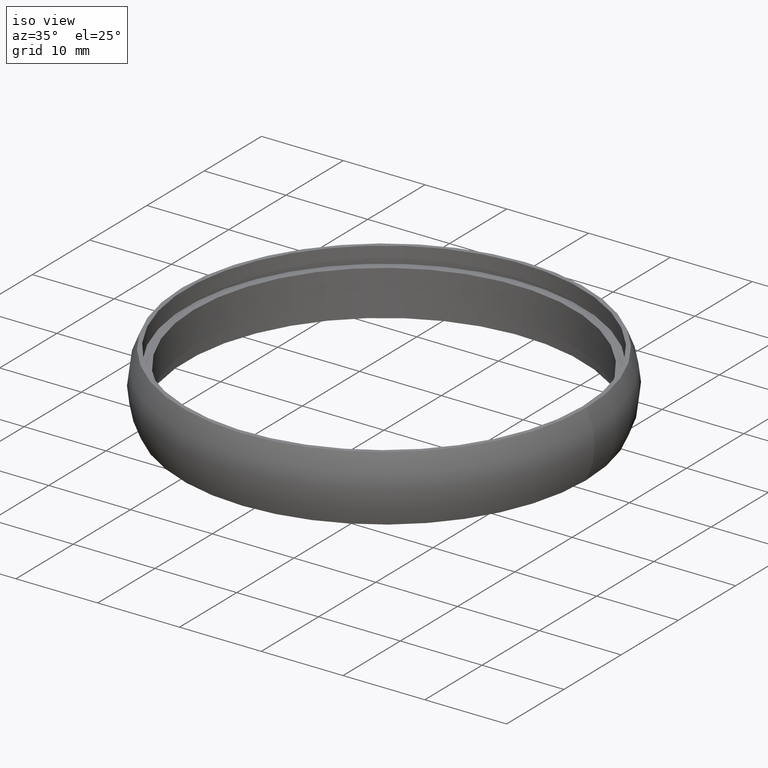
[diagram: clean part render]
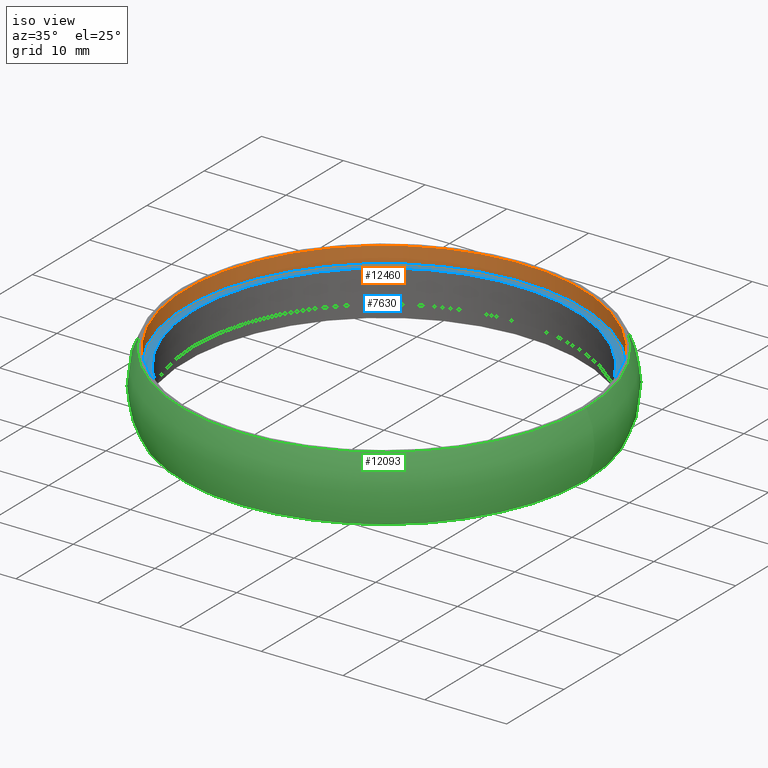
[diagram: same view with three faces highlighted in distinct colors, each labeled with its STEP entity id]
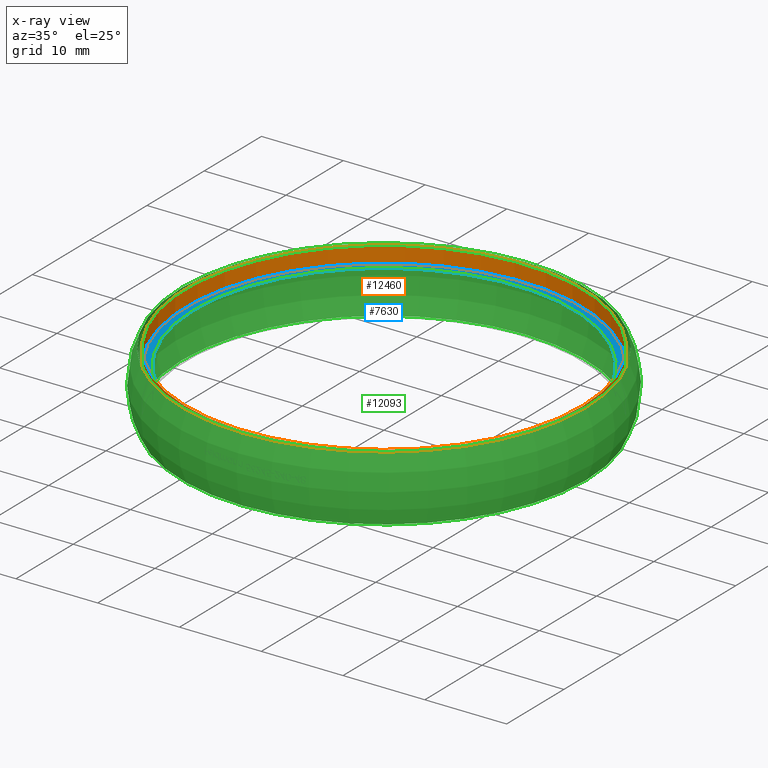
[diagram: x-ray of the same camera — body ghosted, the three highlighted faces saturated]
A machine part, iso view with three faces highlighted in distinct colors.
The next image is the same camera in x-ray (body ghosted, the three faces saturated) — at least one of them is partly hidden behind the body in this view.
Their STEP definitions:

[orange] entity #12460 — the highlighted cylindrical surface (bore or boss wall) has radius 24.25 mm, axis along (-0, -0, 1).
#1139 = VERTEX_POINT ( 'NONE', #10063 ) ;
#1300 = FACE_OUTER_BOUND ( 'NONE', #7313, .T. ) ;
#1345 = AXIS2_PLACEMENT_3D ( 'NONE', #2430, #9326, #10295 ) ;
#2260 = DIRECTION ( 'NONE',  ( -0.0000000000000000000, -0.0000000000000000000, 1.000000000000000000 ) ) ;
#2430 = CARTESIAN_POINT ( 'NONE',  ( 0.0000000000000000000, 0.0000000000000000000, 2.000000000000000000 ) ) ;
#2980 = CARTESIAN_POINT ( 'NONE',  ( 24.25000000000000000, 0.0000000000000000000, 2.000000000000000000 ) ) ;
#3112 = CIRCLE ( 'NONE', #9906, 24.25000000000000000 ) ;
#3170 = DIRECTION ( 'NONE',  ( 1.000000000000000000, 0.0000000000000000000, 0.0000000000000000000 ) ) ;
#3772 = EDGE_CURVE ( 'NONE', #1139, #1139, #3112, .T. ) ;
#3848 = CYLINDRICAL_SURFACE ( 'NONE', #10722, 24.25000000000000000 ) ;
#5335 = CARTESIAN_POINT ( 'NONE',  ( 0.0000000000000000000, 0.0000000000000000000, 4.000000000000000000 ) ) ;
#6647 = CARTESIAN_POINT ( 'NONE',  ( 0.0000000000000000000, 0.0000000000000000000, 0.0000000000000000000 ) ) ;
#7313 = EDGE_LOOP ( 'NONE', ( #9802 ) ) ;
#7323 = CIRCLE ( 'NONE', #1345, 24.25000000000000000 ) ;
#7595 = DIRECTION ( 'NONE',  ( -0.0000000000000000000, -0.0000000000000000000, 1.000000000000000000 ) ) ;
#9326 = DIRECTION ( 'NONE',  ( -0.0000000000000000000, -0.0000000000000000000, 1.000000000000000000 ) ) ;
#9516 = ORIENTED_EDGE ( 'NONE', *, *, #10826, .F. ) ;
#9802 = ORIENTED_EDGE ( 'NONE', *, *, #3772, .T. ) ;
#9906 = AXIS2_PLACEMENT_3D ( 'NONE', #5335, #2260, #3170 ) ;
#9951 = VERTEX_POINT ( 'NONE', #2980 ) ;
#10063 = CARTESIAN_POINT ( 'NONE',  ( 24.25000000000000000, 0.0000000000000000000, 4.000000000000000000 ) ) ;
#10295 = DIRECTION ( 'NONE',  ( 1.000000000000000000, 0.0000000000000000000, 0.0000000000000000000 ) ) ;
#10722 = AXIS2_PLACEMENT_3D ( 'NONE', #6647, #7595, #12675 ) ;
#10826 = EDGE_CURVE ( 'NONE', #9951, #9951, #7323, .T. ) ;
#11383 = EDGE_LOOP ( 'NONE', ( #9516 ) ) ;
#12460 = ADVANCED_FACE ( 'NONE', ( #12532, #1300 ), #3848, .F. ) ;
#12532 = FACE_OUTER_BOUND ( 'NONE', #11383, .T. ) ;
#12675 = DIRECTION ( 'NONE',  ( 1.000000000000000000, 0.0000000000000000000, 0.0000000000000000000 ) ) ;

[blue] entity #7630 — the highlighted planar face has unit normal (0, 0, -1).
#114 = DIRECTION ( 'NONE',  ( 1.000000000000000000, 0.0000000000000000000, 0.0000000000000000000 ) ) ;
#330 = EDGE_LOOP ( 'NONE', ( #10397 ) ) ;
#963 = AXIS2_PLACEMENT_3D ( 'NONE', #12183, #2062, #114 ) ;
#1345 = AXIS2_PLACEMENT_3D ( 'NONE', #2430, #9326, #10295 ) ;
#1416 = EDGE_LOOP ( 'NONE', ( #11474 ) ) ;
#2062 = DIRECTION ( 'NONE',  ( -0.0000000000000000000, -0.0000000000000000000, 1.000000000000000000 ) ) ;
#2065 = CARTESIAN_POINT ( 'NONE',  ( 23.25000000000000000, 0.0000000000000000000, 2.000000000000000000 ) ) ;
#2430 = CARTESIAN_POINT ( 'NONE',  ( 0.0000000000000000000, 0.0000000000000000000, 2.000000000000000000 ) ) ;
#2490 = DIRECTION ( 'NONE',  ( -1.000000000000000000, 0.0000000000000000000, -0.0000000000000000000 ) ) ;
#2610 = EDGE_CURVE ( 'NONE', #4163, #4163, #8827, .T. ) ;
#2980 = CARTESIAN_POINT ( 'NONE',  ( 24.25000000000000000, 0.0000000000000000000, 2.000000000000000000 ) ) ;
#3557 = FACE_BOUND ( 'NONE', #330, .T. ) ;
#4163 = VERTEX_POINT ( 'NONE', #2065 ) ;
#5429 = CARTESIAN_POINT ( 'NONE',  ( 0.0000000000000000000, 24.25000000000000000, 2.000000000000000000 ) ) ;
#7323 = CIRCLE ( 'NONE', #1345, 24.25000000000000000 ) ;
#7630 = ADVANCED_FACE ( 'NONE', ( #3557, #10797 ), #8426, .F. ) ;
#7673 = AXIS2_PLACEMENT_3D ( 'NONE', #5429, #11419, #2490 ) ;
#8426 = PLANE ( 'NONE',  #7673 ) ;
#8827 = CIRCLE ( 'NONE', #963, 23.25000000000000000 ) ;
#9326 = DIRECTION ( 'NONE',  ( -0.0000000000000000000, -0.0000000000000000000, 1.000000000000000000 ) ) ;
#9951 = VERTEX_POINT ( 'NONE', #2980 ) ;
#10295 = DIRECTION ( 'NONE',  ( 1.000000000000000000, 0.0000000000000000000, 0.0000000000000000000 ) ) ;
#10397 = ORIENTED_EDGE ( 'NONE', *, *, #2610, .F. ) ;
#10797 = FACE_OUTER_BOUND ( 'NONE', #1416, .T. ) ;
#10826 = EDGE_CURVE ( 'NONE', #9951, #9951, #7323, .T. ) ;
#11419 = DIRECTION ( 'NONE',  ( 0.0000000000000000000, 0.0000000000000000000, -1.000000000000000000 ) ) ;
#11474 = ORIENTED_EDGE ( 'NONE', *, *, #10826, .T. ) ;
#12183 = CARTESIAN_POINT ( 'NONE',  ( 0.0000000000000000000, 0.0000000000000000000, 2.000000000000000000 ) ) ;

[green] entity #12093 — the highlighted toroidal blend (fillet) surface has major radius 17.25 mm and minor (blend) radius 8.5 mm.
#295 = EDGE_CURVE ( 'NONE', #8886, #8886, #5826, .T. ) ;
#466 = EDGE_CURVE ( 'NONE', #10596, #10596, #1425, .T. ) ;
#1425 = CIRCLE ( 'NONE', #8129, 24.75000000000000000 ) ;
#1942 = FACE_OUTER_BOUND ( 'NONE', #6586, .T. ) ;
#2375 = CARTESIAN_POINT ( 'NONE',  ( 0.0000000000000000000, 0.0000000000000000000, -4.000000000000000000 ) ) ;
#3028 = CARTESIAN_POINT ( 'NONE',  ( 24.75000000000000000, 0.0000000000000000000, 4.000000000000000000 ) ) ;
#3382 = DIRECTION ( 'NONE',  ( 1.000000000000000000, 0.0000000000000000000, 0.0000000000000000000 ) ) ;
#3556 = FACE_OUTER_BOUND ( 'NONE', #10974, .T. ) ;
#4914 = AXIS2_PLACEMENT_3D ( 'NONE', #12696, #6531, #11566 ) ;
#5120 = ORIENTED_EDGE ( 'NONE', *, *, #466, .T. ) ;
#5826 = CIRCLE ( 'NONE', #12445, 24.75000000000000000 ) ;
#6337 = ORIENTED_EDGE ( 'NONE', *, *, #295, .F. ) ;
#6531 = DIRECTION ( 'NONE',  ( -0.0000000000000000000, -0.0000000000000000000, 1.000000000000000000 ) ) ;
#6586 = EDGE_LOOP ( 'NONE', ( #6337 ) ) ;
#6894 = DIRECTION ( 'NONE',  ( -0.0000000000000000000, -0.0000000000000000000, 1.000000000000000000 ) ) ;
#7288 = DIRECTION ( 'NONE',  ( -0.0000000000000000000, -0.0000000000000000000, 1.000000000000000000 ) ) ;
#7965 = CARTESIAN_POINT ( 'NONE',  ( 24.75000000000000000, 0.0000000000000000000, -4.000000000000000000 ) ) ;
#8129 = AXIS2_PLACEMENT_3D ( 'NONE', #2375, #7288, #3382 ) ;
#8886 = VERTEX_POINT ( 'NONE', #3028 ) ;
#10596 = VERTEX_POINT ( 'NONE', #7965 ) ;
#10922 = DIRECTION ( 'NONE',  ( 1.000000000000000000, 0.0000000000000000000, 0.0000000000000000000 ) ) ;
#10974 = EDGE_LOOP ( 'NONE', ( #5120 ) ) ;
#11047 = CARTESIAN_POINT ( 'NONE',  ( 0.0000000000000000000, 0.0000000000000000000, 4.000000000000000000 ) ) ;
#11566 = DIRECTION ( 'NONE',  ( 1.000000000000000000, 0.0000000000000000000, 0.0000000000000000000 ) ) ;
#12017 = TOROIDAL_SURFACE ( 'NONE', #4914, 17.24999999999998200, 8.500000000000017800 ) ;
#12093 = ADVANCED_FACE ( 'NONE', ( #1942, #3556 ), #12017, .T. ) ;
#12445 = AXIS2_PLACEMENT_3D ( 'NONE', #11047, #6894, #10922 ) ;
#12696 = CARTESIAN_POINT ( 'NONE',  ( 0.0000000000000000000, 0.0000000000000000000, 0.0000000000000000000 ) ) ;